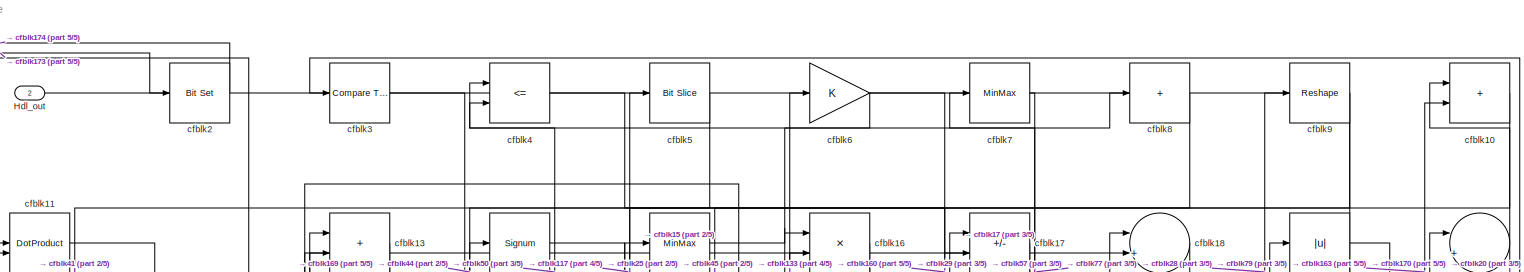
[diagram: root canvas - part 1/5, full width, top band]
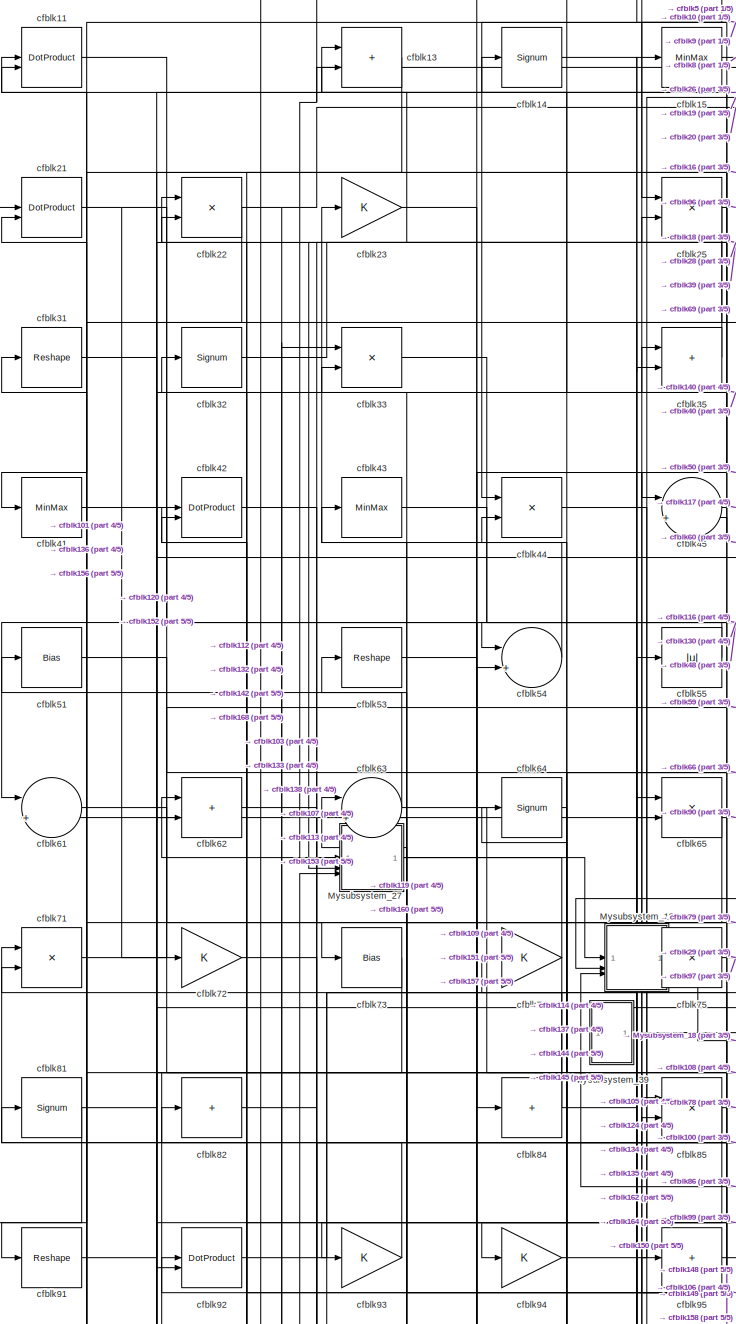
[diagram: root canvas - part 2/5, top left region]
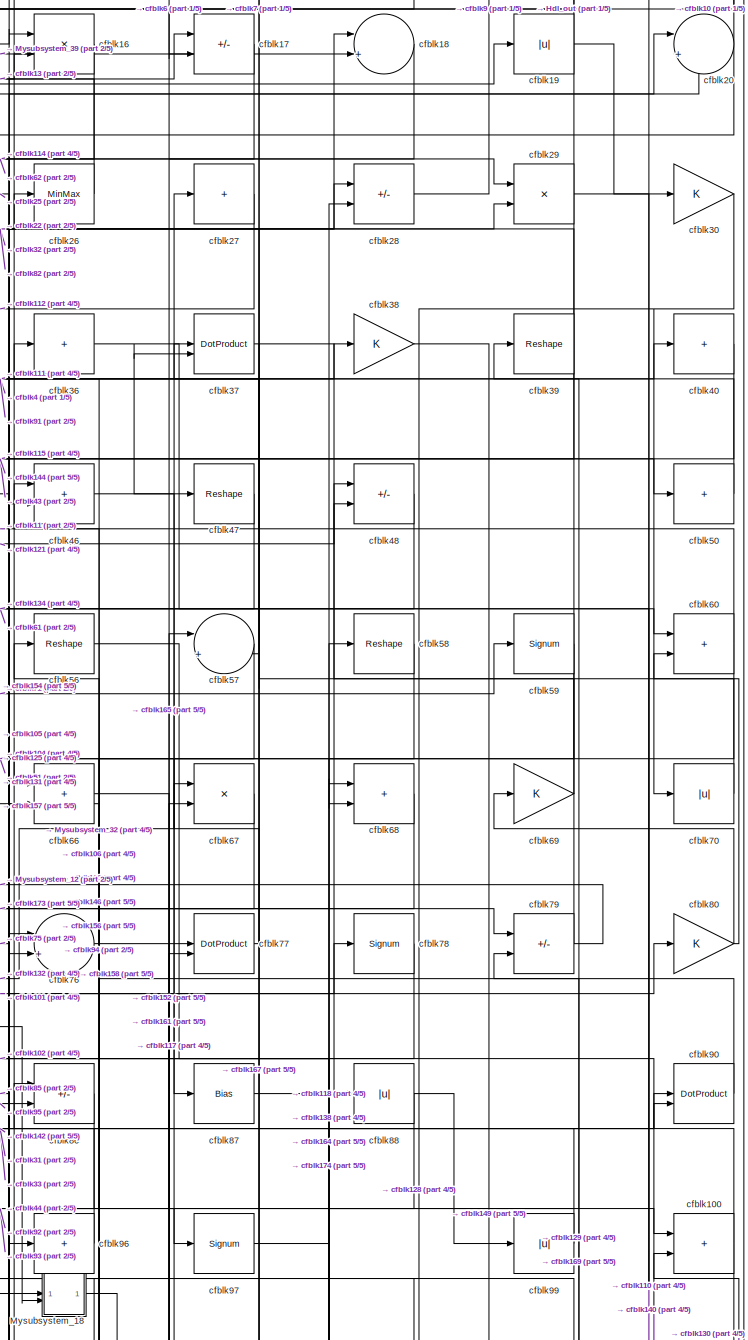
[diagram: root canvas - part 3/5, top right region]
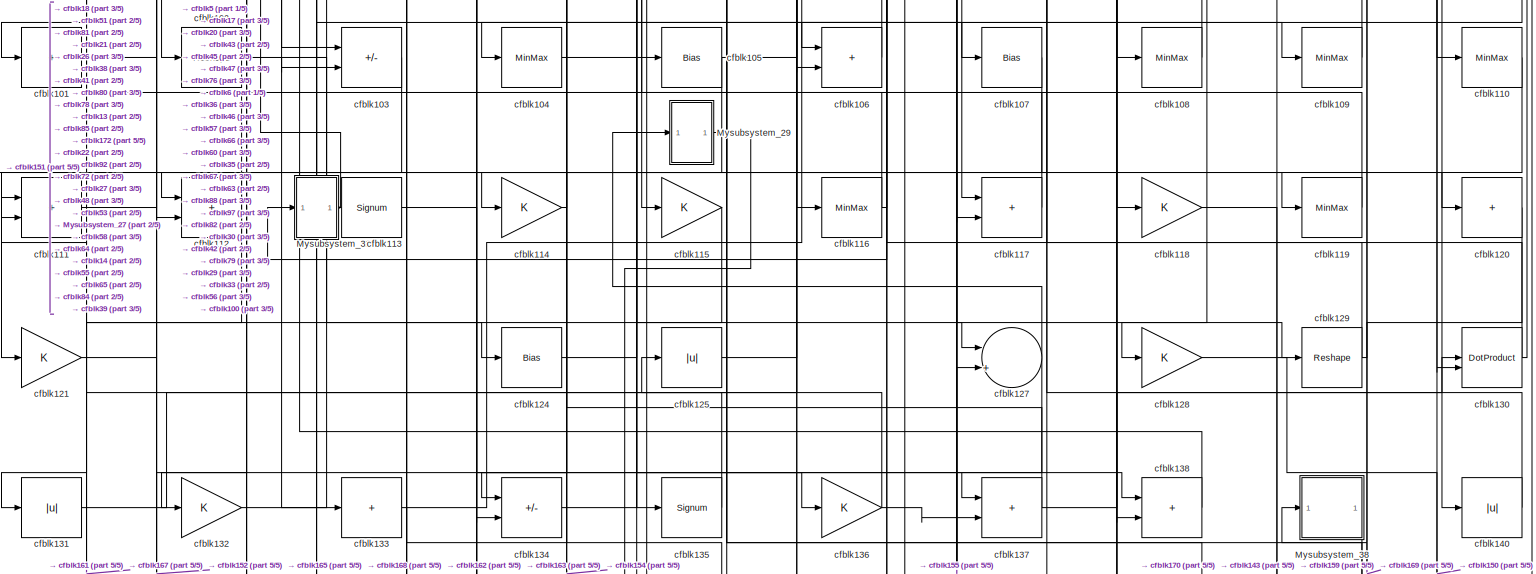
[diagram: root canvas - part 4/5, full width, bottom band]
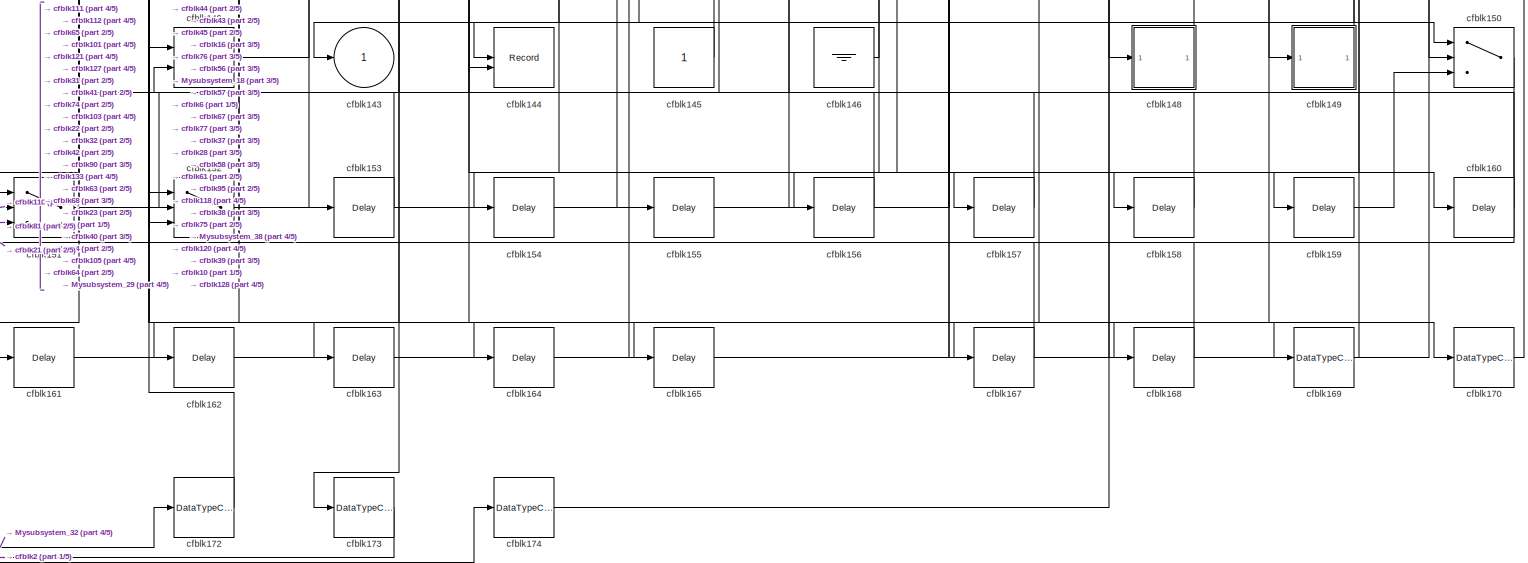
[diagram: root canvas - part 5/5, full width, bottom band]
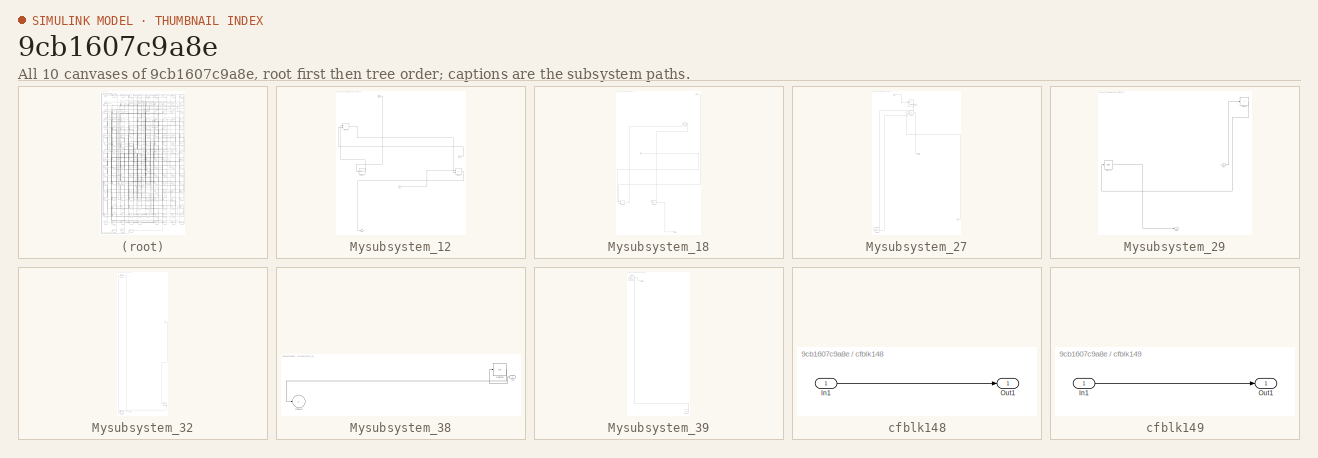
[diagram: thumbnail index - all 10 canvases of the model, root first then tree order]
MODEL slx_9cb1607c9a8e
KIND model
CONFIG AbsTol = auto
CONFIG EnableMultiTasking = off
CONFIG FixedStep = auto
CONFIG MaxStep = auto
CONFIG MinStep = auto
CONFIG RelTol = 1e-3
CONFIG SampleTimeConstraint = Unconstrained
CONFIG SolverName = VariableStepAuto
CONFIG StartTime = 0.0
CONFIG StopTime = 10.0
BLOCK [Outport] Hdl_out
  OutDataTypeStr = uint8
  Port = 2
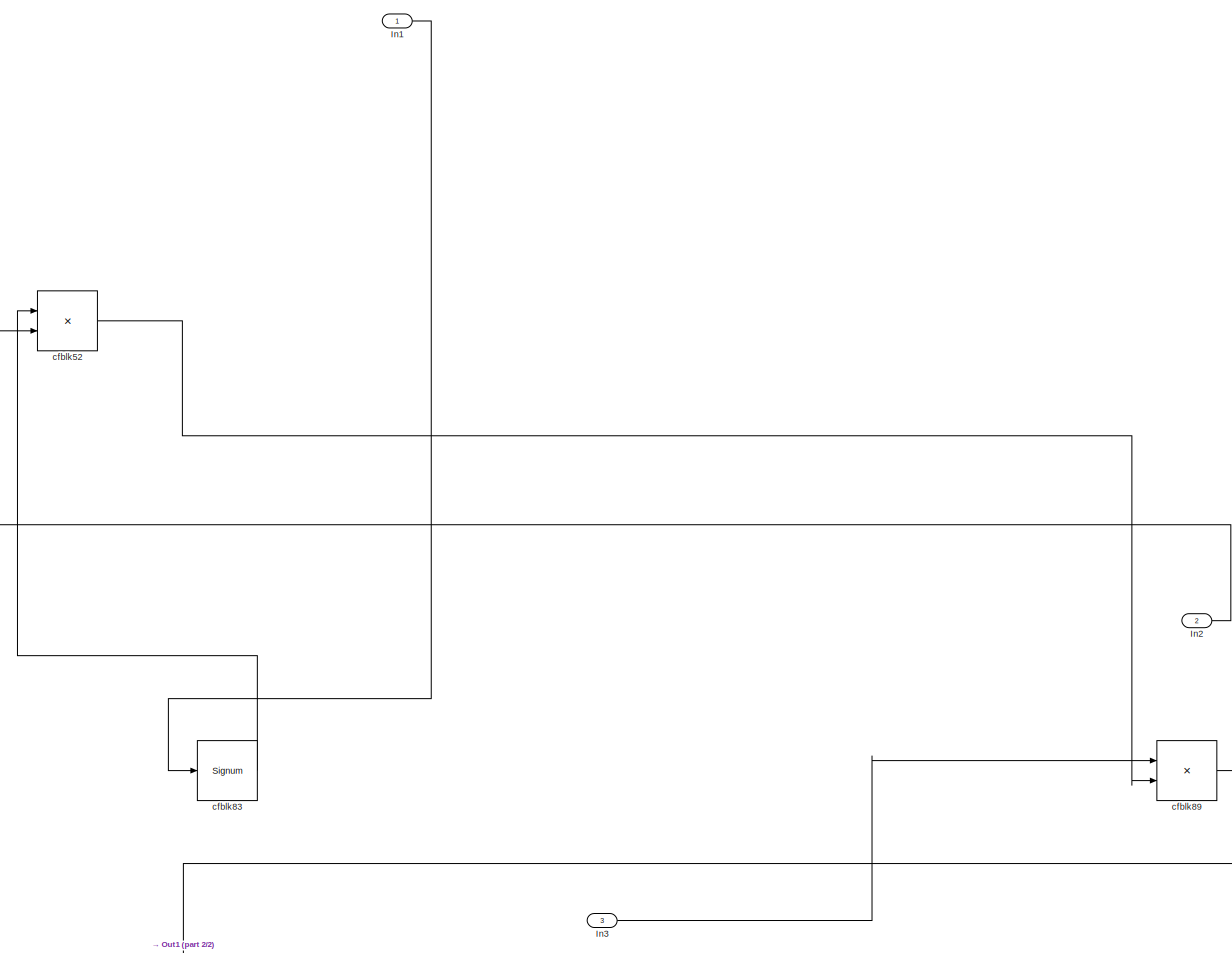
[diagram: Mysubsystem_12 - part 1/2, full width, middle band]
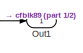
[diagram: Mysubsystem_12 - part 2/2, bottom left region]
BLOCK [SubSystem] Mysubsystem_12
  RTWFcnName = Mysubsystem_12
  RTWFcnNameOpts = User specified
  RTWFileNameOpts = Use function name
  RTWSystemCode = Reusable function
  TreatAsAtomicUnit = on
BLOCK [Inport] Mysubsystem_12/In1
BLOCK [Inport] Mysubsystem_12/In2
  Port = 2
BLOCK [Inport] Mysubsystem_12/In3
  Port = 3
BLOCK [Outport] Mysubsystem_12/Out1
BLOCK [Product] Mysubsystem_12/cfblk52
  Inputs = */
  RndMeth = Zero
  SaturateOnIntegerOverflow = on
BLOCK [Signum] Mysubsystem_12/cfblk83
BLOCK [Product] Mysubsystem_12/cfblk89
  Inputs = */
  RndMeth = Zero
  SaturateOnIntegerOverflow = on
BLOCK [SubSystem] Mysubsystem_18
  RTWFcnName = Mysubsystem_18
  RTWFcnNameOpts = User specified
  RTWFileNameOpts = Use function name
  RTWSystemCode = Reusable function
  TreatAsAtomicUnit = on
BLOCK [Inport] Mysubsystem_18/In1
BLOCK [Inport] Mysubsystem_18/In2
  Port = 2
BLOCK [Outport] Mysubsystem_18/Out1
BLOCK [Product] Mysubsystem_18/cfblk123
  Inputs = */
  RndMeth = Zero
  SaturateOnIntegerOverflow = on
BLOCK [Abs] Mysubsystem_18/cfblk126
  SaturateOnIntegerOverflow = off
BLOCK [Gain] Mysubsystem_18/cfblk49
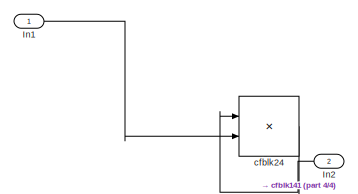
[diagram: Mysubsystem_27 - part 1/4, top center region]
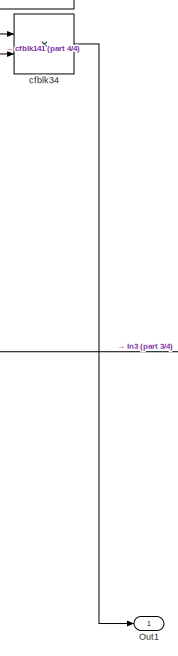
[diagram: Mysubsystem_27 - part 2/4, top center region]
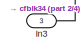
[diagram: Mysubsystem_27 - part 3/4, bottom right region]
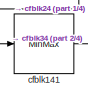
[diagram: Mysubsystem_27 - part 4/4, bottom left region]
BLOCK [SubSystem] Mysubsystem_27
  RTWFcnName = Mysubsystem_27
  RTWFcnNameOpts = User specified
  RTWFileNameOpts = Use function name
  RTWSystemCode = Reusable function
  TreatAsAtomicUnit = on
BLOCK [Inport] Mysubsystem_27/In1
BLOCK [Inport] Mysubsystem_27/In2
  Port = 2
BLOCK [Inport] Mysubsystem_27/In3
  Port = 3
BLOCK [Outport] Mysubsystem_27/Out1
BLOCK [MinMax] Mysubsystem_27/cfblk141
BLOCK [Product] Mysubsystem_27/cfblk24
  Inputs = */
  RndMeth = Zero
  SaturateOnIntegerOverflow = on
BLOCK [Product] Mysubsystem_27/cfblk34
  Inputs = */
  RndMeth = Zero
  SaturateOnIntegerOverflow = on
BLOCK [SubSystem] Mysubsystem_29
  RTWFcnName = Mysubsystem_29
  RTWFcnNameOpts = User specified
  RTWFileNameOpts = Use function name
  RTWSystemCode = Reusable function
  TreatAsAtomicUnit = on
BLOCK [Inport] Mysubsystem_29/In1
BLOCK [Outport] Mysubsystem_29/Out1
BLOCK [Bias] Mysubsystem_29/cfblk122
  Bias = 0.0
  SaturateOnIntegerOverflow = off
BLOCK [Sum] Mysubsystem_29/cfblk98
  IconShape = rectangular
  Inputs = +
BLOCK [SubSystem] Mysubsystem_32
  RTWFcnName = Mysubsystem_32
  RTWFcnNameOpts = User specified
  RTWFileNameOpts = Use function name
  RTWSystemCode = Reusable function
  TreatAsAtomicUnit = on
BLOCK [Inport] Mysubsystem_32/In1
BLOCK [Reference] Mysubsystem_32/cfblk1  REF=simulink/Logic and Bit
Operations/Bit Clear
  LibrarySourceBlock = hdlsllib/Logic and Bit\nOperations/Bit Clear
  SourceBlock = simulink/Logic and Bit\nOperations/Bit Clear
  SourceType = Bit Clear
BLOCK [Delay] Mysubsystem_32/cfblk166
  InputPortMap = u0
  SampleTime = 1
BLOCK [DataTypeConversion] Mysubsystem_32/cfblk171
  OutDataTypeStr = boolean
  RndMeth = Floor
  SaturateOnIntegerOverflow = off
BLOCK [Outport] Mysubsystem_32/y
BLOCK [SubSystem] Mysubsystem_38
  RTWFcnName = Mysubsystem_38
  RTWFcnNameOpts = User specified
  RTWFileNameOpts = Use function name
  RTWSystemCode = Reusable function
  TreatAsAtomicUnit = on
BLOCK [Inport] Mysubsystem_38/In1
BLOCK [Abs] Mysubsystem_38/cfblk139
  SaturateOnIntegerOverflow = off
BLOCK [Outport] Mysubsystem_38/cfblk143
  VectorParamsAs1DForOutWhenUnconnected = off
BLOCK [SubSystem] Mysubsystem_39
  RTWFcnName = Mysubsystem_39
  RTWFcnNameOpts = User specified
  RTWFileNameOpts = Use function name
  RTWSystemCode = Reusable function
  TreatAsAtomicUnit = on
BLOCK [Outport] Mysubsystem_39/Out1
BLOCK [Signum] Mysubsystem_39/cfblk12
BLOCK [Ground] Mysubsystem_39/cfblk147
BLOCK [Sum] cfblk10
  IconShape = rectangular
  OutDataTypeStr = uint8
BLOCK [Sum] cfblk100
  IconShape = rectangular
  OutDataTypeStr = uint8
BLOCK [Sum] cfblk101
  IconShape = rectangular
  Inputs = +
  OutDataTypeStr = uint8
BLOCK [Reshape] cfblk102
BLOCK [Sum] cfblk103
  IconShape = rectangular
  Inputs = +-
  OutDataTypeStr = uint8
BLOCK [MinMax] cfblk104
  OutDataTypeStr = uint8
BLOCK [Bias] cfblk105
  Bias = 0.0
  SaturateOnIntegerOverflow = off
BLOCK [Sum] cfblk106
  IconShape = rectangular
  OutDataTypeStr = uint8
BLOCK [Bias] cfblk107
  Bias = 0.0
  SaturateOnIntegerOverflow = off
BLOCK [MinMax] cfblk108
  OutDataTypeStr = uint8
BLOCK [MinMax] cfblk109
  OutDataTypeStr = uint8
BLOCK [DotProduct] cfblk11
  OutDataTypeStr = uint8
BLOCK [MinMax] cfblk110
  OutDataTypeStr = uint8
BLOCK [Sum] cfblk111
  IconShape = rectangular
  OutDataTypeStr = uint8
BLOCK [Sum] cfblk112
  IconShape = rectangular
  OutDataTypeStr = uint8
BLOCK [Signum] cfblk113
BLOCK [Gain] cfblk114
  OutDataTypeStr = uint8
BLOCK [Gain] cfblk115
  OutDataTypeStr = uint8
BLOCK [MinMax] cfblk116
  OutDataTypeStr = uint8
BLOCK [Sum] cfblk117
  IconShape = rectangular
  OutDataTypeStr = uint8
BLOCK [Gain] cfblk118
  OutDataTypeStr = uint8
BLOCK [MinMax] cfblk119
  OutDataTypeStr = uint8
BLOCK [Sum] cfblk120
  IconShape = rectangular
  Inputs = +
  OutDataTypeStr = uint8
BLOCK [Gain] cfblk121
  OutDataTypeStr = uint8
BLOCK [Bias] cfblk124
  Bias = 0.0
  SaturateOnIntegerOverflow = off
BLOCK [Abs] cfblk125
  OutDataTypeStr = uint8
  SaturateOnIntegerOverflow = off
BLOCK [Sum] cfblk127
  Inputs = |++
  OutDataTypeStr = uint8
BLOCK [Gain] cfblk128
  OutDataTypeStr = uint8
BLOCK [Reshape] cfblk129
BLOCK [Sum] cfblk13
  IconShape = rectangular
  OutDataTypeStr = uint8
BLOCK [DotProduct] cfblk130
  OutDataTypeStr = uint8
BLOCK [Abs] cfblk131
  OutDataTypeStr = uint8
  SaturateOnIntegerOverflow = off
BLOCK [Gain] cfblk132
  OutDataTypeStr = uint8
BLOCK [Sum] cfblk133
  IconShape = rectangular
  Inputs = +
  OutDataTypeStr = uint8
BLOCK [Sum] cfblk134
  IconShape = rectangular
  Inputs = +-
  OutDataTypeStr = uint8
BLOCK [Signum] cfblk135
BLOCK [Gain] cfblk136
  OutDataTypeStr = uint8
BLOCK [Sum] cfblk137
  IconShape = rectangular
  OutDataTypeStr = uint8
BLOCK [Sum] cfblk138
  IconShape = rectangular
  OutDataTypeStr = uint8
BLOCK [Signum] cfblk14
BLOCK [Abs] cfblk140
  OutDataTypeStr = uint8
  SaturateOnIntegerOverflow = off
BLOCK [Product] cfblk142
  Inputs = */
  OutDataTypeStr = uint8
  RndMeth = Zero
  SaturateOnIntegerOverflow = on
BLOCK [Outport] cfblk143
  OutDataTypeStr = uint8
  VectorParamsAs1DForOutWhenUnconnected = off
BLOCK [Record] cfblk144
  CompatibilityTag = XY
  FileSettingsInternal = {"entries":[{"content":{"excelSettings":{"content":{},"type":"Streamout.ExcelSettings"}},"type":"Streamout.FileSettingStorage","uuid":""}],"packageUris":["http:\/\/schema.mathworks.com\/mf0\/streamout_blocks\/R2020a"],"version":"1.0"}
  Layout = [1 1]
  SignalsInternal = {"entries":[{"content":{"signals":[{"content":{"blockPath":[],"dimensions":[1],"domain":"","lineColor":"#a2142f","plots":[1],"port":1,"signalID":30493,"signalName":"cfblk64"},"type":"RecordBlkView.Signal","uuid":""},{"content":{"blockPath":[],"dimensions":[1],"domain":"","lineColor":"#139fff","plots":[1],"port":2,"signalID":30496,"signalName":"cfblk40"},"type":"RecordBlkView.Signal","uuid":""}]},"...<+142ch>
  VisualizationBindings = {"xyplotplugin":{"info":[{"series":[{"bindingParametersList":[{"parameter":"X-Axis","signalID":30493,"signalName":"cfblk64"},{"parameter":"Y-Axis","signalID":30496,"signalName":"cfblk40"}],"seriesID":15237}],"subplotID":1}]}}
  st = -1
BLOCK [Constant] cfblk145
  OutDataTypeStr = uint8
  SampleTime = -1
BLOCK [Ground] cfblk146
BLOCK [SubSystem] cfblk148
  LibrarySourceBlock = hdlsllib/Ports &\nSubsystems/Subsystem
BLOCK [Inport] cfblk148/In1
BLOCK [Outport] cfblk148/Out1
BLOCK [SubSystem] cfblk149
  LibrarySourceBlock = hdlsllib/Ports &\nSubsystems/Subsystem
BLOCK [Inport] cfblk149/In1
BLOCK [Outport] cfblk149/Out1
BLOCK [MinMax] cfblk15
  OutDataTypeStr = uint8
BLOCK [Switch] cfblk150
  InputSameDT = off
  OutDataTypeStr = uint8
  SaturateOnIntegerOverflow = off
BLOCK [Switch] cfblk151
  InputSameDT = off
  OutDataTypeStr = uint8
  SaturateOnIntegerOverflow = off
BLOCK [Switch] cfblk152
  InputSameDT = off
  OutDataTypeStr = uint8
  SaturateOnIntegerOverflow = off
BLOCK [Delay] cfblk153
  InputPortMap = u0
  SampleTime = 1
BLOCK [Delay] cfblk154
  InputPortMap = u0
  SampleTime = 1
BLOCK [Delay] cfblk155
  InputPortMap = u0
  SampleTime = 1
BLOCK [Delay] cfblk156
  InputPortMap = u0
  SampleTime = 1
BLOCK [Delay] cfblk157
  InputPortMap = u0
  SampleTime = 1
BLOCK [Delay] cfblk158
  InputPortMap = u0
  SampleTime = 1
BLOCK [Delay] cfblk159
  InputPortMap = u0
  SampleTime = 1
BLOCK [Product] cfblk16
  Inputs = */
  OutDataTypeStr = uint8
  RndMeth = Zero
  SaturateOnIntegerOverflow = on
BLOCK [Delay] cfblk160
  InputPortMap = u0
  SampleTime = 1
BLOCK [Delay] cfblk161
  InputPortMap = u0
  SampleTime = 1
BLOCK [Delay] cfblk162
  InputPortMap = u0
  SampleTime = 1
BLOCK [Delay] cfblk163
  InputPortMap = u0
  SampleTime = 1
BLOCK [Delay] cfblk164
  InputPortMap = u0
  SampleTime = 1
BLOCK [Delay] cfblk165
  InputPortMap = u0
  SampleTime = 1
BLOCK [Delay] cfblk167
  InputPortMap = u0
  SampleTime = 1
BLOCK [Delay] cfblk168
  InputPortMap = u0
  SampleTime = 1
BLOCK [DataTypeConversion] cfblk169
  OutDataTypeStr = uint8
  RndMeth = Floor
  SaturateOnIntegerOverflow = off
BLOCK [Sum] cfblk17
  IconShape = rectangular
  Inputs = +-
  OutDataTypeStr = uint8
BLOCK [DataTypeConversion] cfblk170
  OutDataTypeStr = uint8
  RndMeth = Floor
  SaturateOnIntegerOverflow = off
BLOCK [DataTypeConversion] cfblk172
  OutDataTypeStr = uint8
  RndMeth = Floor
  SaturateOnIntegerOverflow = off
BLOCK [DataTypeConversion] cfblk173
  OutDataTypeStr = uint8
  RndMeth = Floor
  SaturateOnIntegerOverflow = off
BLOCK [DataTypeConversion] cfblk174
  OutDataTypeStr = uint8
  RndMeth = Floor
  SaturateOnIntegerOverflow = off
BLOCK [Sum] cfblk18
  Inputs = |++
  OutDataTypeStr = uint8
BLOCK [Abs] cfblk19
  OutDataTypeStr = uint8
  SaturateOnIntegerOverflow = off
BLOCK [Reference] cfblk2  REF=simulink/Logic and Bit
Operations/Bit Set
  LibrarySourceBlock = hdlsllib/Logic and Bit\nOperations/Bit Set
  SourceBlock = simulink/Logic and Bit\nOperations/Bit Set
  SourceType = Bit Set
BLOCK [Sum] cfblk20
  Inputs = |++
  OutDataTypeStr = uint8
BLOCK [DotProduct] cfblk21
  OutDataTypeStr = uint8
BLOCK [Product] cfblk22
  Inputs = */
  OutDataTypeStr = uint8
  RndMeth = Zero
  SaturateOnIntegerOverflow = on
BLOCK [Gain] cfblk23
  OutDataTypeStr = uint8
BLOCK [Product] cfblk25
  Inputs = */
  OutDataTypeStr = uint8
  RndMeth = Zero
  SaturateOnIntegerOverflow = on
BLOCK [MinMax] cfblk26
  OutDataTypeStr = uint8
BLOCK [Sum] cfblk27
  IconShape = rectangular
  Inputs = +
  OutDataTypeStr = uint8
BLOCK [Sum] cfblk28
  IconShape = rectangular
  Inputs = +-
  OutDataTypeStr = uint8
BLOCK [Product] cfblk29
  Inputs = */
  OutDataTypeStr = uint8
  RndMeth = Zero
  SaturateOnIntegerOverflow = on
BLOCK [Reference] cfblk3  REF=hdlsllib/Logic and Bit
Operations/Compare
To Zero
  SourceBlock = hdlsllib/Logic and Bit\nOperations/Compare\nTo Zero
  SourceType = Compare To Zero
BLOCK [Gain] cfblk30
  OutDataTypeStr = uint8
BLOCK [Reshape] cfblk31
BLOCK [Signum] cfblk32
BLOCK [Product] cfblk33
  Inputs = */
  OutDataTypeStr = uint8
  RndMeth = Zero
  SaturateOnIntegerOverflow = on
BLOCK [Sum] cfblk35
  IconShape = rectangular
  OutDataTypeStr = uint8
BLOCK [Sum] cfblk36
  IconShape = rectangular
  Inputs = +
  OutDataTypeStr = uint8
BLOCK [DotProduct] cfblk37
  OutDataTypeStr = uint8
BLOCK [Gain] cfblk38
  OutDataTypeStr = uint8
BLOCK [Reshape] cfblk39
BLOCK [RelationalOperator] cfblk4
  InputSameDT = off
  Operator = <=
  OutDataTypeStr = boolean
BLOCK [Sum] cfblk40
  IconShape = rectangular
  Inputs = +
  OutDataTypeStr = uint8
BLOCK [MinMax] cfblk41
  OutDataTypeStr = uint8
BLOCK [DotProduct] cfblk42
  OutDataTypeStr = uint8
BLOCK [MinMax] cfblk43
  OutDataTypeStr = uint8
BLOCK [Product] cfblk44
  Inputs = */
  OutDataTypeStr = uint8
  RndMeth = Zero
  SaturateOnIntegerOverflow = on
BLOCK [Sum] cfblk45
  Inputs = |++
  OutDataTypeStr = uint8
BLOCK [Sum] cfblk46
  IconShape = rectangular
  OutDataTypeStr = uint8
BLOCK [Reshape] cfblk47
BLOCK [Sum] cfblk48
  IconShape = rectangular
  Inputs = +-
  OutDataTypeStr = uint8
BLOCK [Reference] cfblk5  REF=hdlsllib/Logic and Bit
Operations/Bit Slice
  SourceBlock = hdlsllib/Logic and Bit\nOperations/Bit Slice
  SourceType = Bit Slice
BLOCK [Sum] cfblk50
  IconShape = rectangular
  Inputs = +
  OutDataTypeStr = uint8
BLOCK [Bias] cfblk51
  Bias = 0.0
  SaturateOnIntegerOverflow = off
BLOCK [Reshape] cfblk53
BLOCK [Sum] cfblk54
  Inputs = |++
  OutDataTypeStr = uint8
BLOCK [Abs] cfblk55
  OutDataTypeStr = uint8
  SaturateOnIntegerOverflow = off
BLOCK [Reshape] cfblk56
BLOCK [Sum] cfblk57
  Inputs = |++
  OutDataTypeStr = uint8
BLOCK [Reshape] cfblk58
BLOCK [Signum] cfblk59
BLOCK [Gain] cfblk6
  OutDataTypeStr = uint8
BLOCK [Sum] cfblk60
  IconShape = rectangular
  OutDataTypeStr = uint8
BLOCK [Sum] cfblk61
  Inputs = |++
  OutDataTypeStr = uint8
BLOCK [Sum] cfblk62
  IconShape = rectangular
  OutDataTypeStr = uint8
BLOCK [Sum] cfblk63
  Inputs = |++
  OutDataTypeStr = uint8
BLOCK [Signum] cfblk64
BLOCK [Product] cfblk65
  Inputs = */
  OutDataTypeStr = uint8
  RndMeth = Zero
  SaturateOnIntegerOverflow = on
BLOCK [Sum] cfblk66
  IconShape = rectangular
  OutDataTypeStr = uint8
BLOCK [Product] cfblk67
  Inputs = */
  OutDataTypeStr = uint8
  RndMeth = Zero
  SaturateOnIntegerOverflow = on
BLOCK [Sum] cfblk68
  IconShape = rectangular
  OutDataTypeStr = uint8
BLOCK [Gain] cfblk69
  OutDataTypeStr = uint8
BLOCK [MinMax] cfblk7
  OutDataTypeStr = uint8
BLOCK [Abs] cfblk70
  OutDataTypeStr = uint8
  SaturateOnIntegerOverflow = off
BLOCK [Product] cfblk71
  Inputs = */
  OutDataTypeStr = uint8
  RndMeth = Zero
  SaturateOnIntegerOverflow = on
BLOCK [Gain] cfblk72
  OutDataTypeStr = uint8
BLOCK [Bias] cfblk73
  Bias = 0.0
  SaturateOnIntegerOverflow = off
BLOCK [Gain] cfblk74
  OutDataTypeStr = uint8
BLOCK [Product] cfblk75
  Inputs = */
  OutDataTypeStr = uint8
  RndMeth = Zero
  SaturateOnIntegerOverflow = on
BLOCK [Sum] cfblk76
  Inputs = |++
  OutDataTypeStr = uint8
BLOCK [DotProduct] cfblk77
  OutDataTypeStr = uint8
BLOCK [Signum] cfblk78
BLOCK [Sum] cfblk79
  IconShape = rectangular
  Inputs = +-
  OutDataTypeStr = uint8
BLOCK [Sum] cfblk8
  IconShape = rectangular
  Inputs = +
  OutDataTypeStr = uint8
BLOCK [Gain] cfblk80
  OutDataTypeStr = uint8
BLOCK [Signum] cfblk81
BLOCK [Sum] cfblk82
  IconShape = rectangular
  Inputs = +
  OutDataTypeStr = uint8
BLOCK [Sum] cfblk84
  IconShape = rectangular
  Inputs = +
  OutDataTypeStr = uint8
BLOCK [Product] cfblk85
  Inputs = */
  OutDataTypeStr = uint8
  RndMeth = Zero
  SaturateOnIntegerOverflow = on
BLOCK [Sum] cfblk86
  IconShape = rectangular
  Inputs = +-
  OutDataTypeStr = uint8
BLOCK [Bias] cfblk87
  Bias = 0.0
  SaturateOnIntegerOverflow = off
BLOCK [Abs] cfblk88
  OutDataTypeStr = uint8
  SaturateOnIntegerOverflow = off
BLOCK [Reshape] cfblk9
BLOCK [DotProduct] cfblk90
  OutDataTypeStr = uint8
BLOCK [Reshape] cfblk91
BLOCK [DotProduct] cfblk92
  OutDataTypeStr = uint8
BLOCK [Gain] cfblk93
  OutDataTypeStr = uint8
BLOCK [Gain] cfblk94
  OutDataTypeStr = uint8
BLOCK [Sum] cfblk95
  IconShape = rectangular
  Inputs = +
  OutDataTypeStr = uint8
BLOCK [Sum] cfblk96
  IconShape = rectangular
  Inputs = +
  OutDataTypeStr = uint8
BLOCK [Signum] cfblk97
BLOCK [Abs] cfblk99
  OutDataTypeStr = uint8
  SaturateOnIntegerOverflow = off
LINE Mysubsystem_12/In1:1 -> Mysubsystem_12/cfblk83:1
LINE Mysubsystem_12/In2:1 -> Mysubsystem_12/cfblk52:2
LINE Mysubsystem_12/In3:1 -> Mysubsystem_12/cfblk89:1
LINE Mysubsystem_12/cfblk52:1 -> Mysubsystem_12/cfblk89:2
LINE Mysubsystem_12/cfblk83:1 -> Mysubsystem_12/cfblk52:1
LINE Mysubsystem_12/cfblk89:1 -> Mysubsystem_12/Out1:1
LINE Mysubsystem_12:1 -> Mysubsystem_18:2
LINE Mysubsystem_18/In1:1 -> Mysubsystem_18/cfblk123:2
LINE Mysubsystem_18/In2:1 -> Mysubsystem_18/cfblk123:1
LINE Mysubsystem_18/cfblk123:1 -> Mysubsystem_18/cfblk49:1
LINE Mysubsystem_18/cfblk126:1 -> Mysubsystem_18/Out1:1
LINE Mysubsystem_18/cfblk49:1 -> Mysubsystem_18/cfblk126:1
LINE Mysubsystem_18:1 -> cfblk158:1
LINE Mysubsystem_27/In1:1 -> Mysubsystem_27/cfblk24:2
LINE Mysubsystem_27/In2:1 -> Mysubsystem_27/cfblk24:1
LINE Mysubsystem_27/In3:1 -> Mysubsystem_27/cfblk34:1
LINE Mysubsystem_27/cfblk141:1 -> Mysubsystem_27/cfblk34:2
LINE Mysubsystem_27/cfblk24:1 -> Mysubsystem_27/cfblk141:1
LINE Mysubsystem_27/cfblk34:1 -> Mysubsystem_27/Out1:1
LINE Mysubsystem_27:1 -> Mysubsystem_12:1
LINE Mysubsystem_29/In1:1 -> Mysubsystem_29/cfblk98:1
LINE Mysubsystem_29/cfblk122:1 -> Mysubsystem_29/Out1:1
LINE Mysubsystem_29/cfblk98:1 -> Mysubsystem_29/cfblk122:1
LINE Mysubsystem_29:1 -> cfblk155:1
LINE Mysubsystem_32/In1:1 -> Mysubsystem_32/cfblk166:1
LINE Mysubsystem_32/cfblk166:1 -> Mysubsystem_32/cfblk171:1
LINE Mysubsystem_32/cfblk171:1 -> Mysubsystem_32/cfblk1:1
LINE Mysubsystem_32/cfblk1:1 -> Mysubsystem_32/y:1
LINE Mysubsystem_32:1 -> cfblk172:1
LINE Mysubsystem_38/In1:1 -> Mysubsystem_38/cfblk139:1
LINE Mysubsystem_38/cfblk139:1 -> Mysubsystem_38/cfblk143:1
LINE Mysubsystem_38:1 -> cfblk143:1
LINE Mysubsystem_39/cfblk12:1 -> Mysubsystem_39/Out1:1
LINE Mysubsystem_39/cfblk147:1 -> Mysubsystem_39/cfblk12:1
NET Mysubsystem_39:1 -> Mysubsystem_27:1, cfblk18:2
NET cfblk100:1 -> cfblk134:1, cfblk31:1
NET cfblk101:1 -> cfblk168:1, cfblk80:1
NET cfblk102:1 -> cfblk103:2, cfblk124:1
LINE cfblk103:1 -> cfblk162:1
LINE cfblk104:1 -> cfblk127:1
NET cfblk105:1 -> cfblk154:1, cfblk20:2
LINE cfblk106:1 -> cfblk63:1
LINE cfblk107:1 -> cfblk121:1
LINE cfblk108:1 -> cfblk82:1
LINE cfblk109:1 -> cfblk42:1
LINE cfblk10:1 -> cfblk25:1
LINE cfblk110:1 -> cfblk151:2
LINE cfblk111:1 -> cfblk38:1
NET cfblk112:1 -> cfblk161:1, cfblk51:1
LINE cfblk113:1 -> cfblk138:1
NET cfblk114:1 -> Mysubsystem_27:2, cfblk14:1
LINE cfblk115:1 -> cfblk131:1
NET cfblk116:1 -> cfblk36:1, cfblk92:1
LINE cfblk117:1 -> cfblk5:1
LINE cfblk118:1 -> cfblk170:1
LINE cfblk119:1 -> cfblk53:1
LINE cfblk11:1 -> cfblk84:1
LINE cfblk120:1 -> cfblk159:1
NET cfblk121:1 -> cfblk165:1, cfblk26:1, cfblk48:2
LINE cfblk124:1 -> cfblk65:1
LINE cfblk125:1 -> cfblk17:1
NET cfblk127:1 -> Mysubsystem_29:1, cfblk137:1, cfblk152:3
LINE cfblk128:1 -> cfblk150:2
NET cfblk129:1 -> cfblk46:1, cfblk79:2
NET cfblk130:1 -> cfblk100:2, cfblk67:1
LINE cfblk131:1 -> cfblk76:1
LINE cfblk132:1 -> cfblk27:1
NET cfblk133:1 -> cfblk163:1, cfblk6:1
LINE cfblk134:1 -> cfblk55:1
LINE cfblk135:1 -> cfblk125:1
NET cfblk136:1 -> cfblk137:2, cfblk81:1
NET cfblk137:1 -> cfblk130:1, cfblk64:1
LINE cfblk138:1 -> Mysubsystem_27:3
LINE cfblk13:1 -> cfblk112:1
LINE cfblk140:1 -> cfblk35:1
NET cfblk142:1 -> cfblk32:1, cfblk90:1
NET cfblk145:1 -> cfblk43:1, cfblk74:1
LINE cfblk146:1 -> cfblk56:1
LINE cfblk148/In1:1 -> cfblk148/Out1:1
LINE cfblk148:1 -> cfblk95:1
LINE cfblk149/In1:1 -> cfblk149/Out1:1
LINE cfblk149:1 -> cfblk75:2
NET cfblk14:1 -> cfblk136:1, cfblk35:2
LINE cfblk150:1 -> cfblk21:1
LINE cfblk151:1 -> cfblk54:2
LINE cfblk152:1 -> cfblk67:2
LINE cfblk153:1 -> cfblk142:2
LINE cfblk154:1 -> cfblk76:2
LINE cfblk155:1 -> cfblk127:2
LINE cfblk156:1 -> cfblk21:2
LINE cfblk157:1 -> cfblk16:1
LINE cfblk158:1 -> cfblk45:2
LINE cfblk159:1 -> cfblk150:3
LINE cfblk15:1 -> cfblk8:1
LINE cfblk160:1 -> cfblk63:2
LINE cfblk161:1 -> cfblk77:2
LINE cfblk162:1 -> cfblk75:1
LINE cfblk163:1 -> cfblk10:2
LINE cfblk164:1 -> cfblk28:2
LINE cfblk165:1 -> cfblk57:1
LINE cfblk167:1 -> cfblk111:2
LINE cfblk168:1 -> cfblk22:2
NET cfblk169:1 -> Mysubsystem_38:1, cfblk39:1
NET cfblk16:1 -> cfblk46:2, cfblk62:2
LINE cfblk170:1 -> cfblk3:1
LINE cfblk172:1 -> cfblk142:1
LINE cfblk173:1 -> cfblk2:1
LINE cfblk174:1 -> cfblk58:1
LINE cfblk17:1 -> cfblk114:1
LINE cfblk18:1 -> cfblk111:1
LINE cfblk19:1 -> cfblk30:1
NET cfblk20:1 -> Mysubsystem_18:1, cfblk10:1
NET cfblk21:1 -> cfblk120:1, cfblk72:1, cfblk73:1
NET cfblk22:1 -> cfblk101:1, cfblk103:1, cfblk20:1
LINE cfblk23:1 -> cfblk157:1
NET cfblk25:1 -> cfblk65:2, cfblk96:1
LINE cfblk26:1 -> cfblk13:2
NET cfblk27:1 -> cfblk112:2, cfblk66:2
LINE cfblk28:1 -> cfblk9:1
LINE cfblk29:1 -> cfblk110:1
LINE cfblk2:1 -> cfblk174:1
NET cfblk30:1 -> cfblk128:1, cfblk70:1
LINE cfblk31:1 -> cfblk152:1
LINE cfblk32:1 -> cfblk18:1
LINE cfblk33:1 -> cfblk130:2
LINE cfblk35:1 -> cfblk13:1
NET cfblk36:1 -> cfblk37:2, cfblk47:1, cfblk60:1
NET cfblk37:1 -> cfblk167:1, cfblk88:1
LINE cfblk38:1 -> cfblk149:1
NET cfblk39:1 -> cfblk115:1, cfblk22:1
LINE cfblk3:1 -> cfblk169:1
LINE cfblk40:1 -> cfblk144:2
NET cfblk41:1 -> cfblk105:1, cfblk164:1
LINE cfblk42:1 -> cfblk153:1
NET cfblk43:1 -> cfblk116:1, cfblk50:1
LINE cfblk44:1 -> cfblk150:1
LINE cfblk45:1 -> cfblk117:2
LINE cfblk46:1 -> cfblk87:1
LINE cfblk47:1 -> cfblk106:2
NET cfblk48:1 -> cfblk134:2, cfblk61:1
LINE cfblk4:1 -> cfblk17:2
LINE cfblk50:1 -> cfblk4:1
LINE cfblk51:1 -> cfblk66:1
LINE cfblk53:1 -> cfblk109:1
LINE cfblk54:1 -> cfblk23:1
LINE cfblk55:1 -> cfblk54:1
LINE cfblk56:1 -> cfblk140:1
LINE cfblk57:1 -> cfblk106:1
LINE cfblk58:1 -> cfblk104:1
LINE cfblk59:1 -> cfblk68:2
LINE cfblk5:1 -> cfblk41:1
NET cfblk60:1 -> Mysubsystem_32:1, cfblk117:1, cfblk11:1, cfblk37:1, cfblk94:1
LINE cfblk61:1 -> cfblk148:1
NET cfblk62:1 -> cfblk42:2, cfblk79:1
NET cfblk63:1 -> cfblk108:1, cfblk11:2
LINE cfblk64:1 -> cfblk144:1
LINE cfblk65:1 -> cfblk151:1
LINE cfblk66:1 -> cfblk129:1
LINE cfblk67:1 -> cfblk156:1
LINE cfblk68:1 -> cfblk173:1
LINE cfblk69:1 -> cfblk25:2
NET cfblk6:1 -> cfblk160:1, cfblk29:1, cfblk4:2
LINE cfblk70:1 -> cfblk48:1
LINE cfblk71:1 -> cfblk59:1
LINE cfblk72:1 -> cfblk113:1
LINE cfblk73:1 -> cfblk91:1
NET cfblk74:1 -> cfblk152:2, cfblk62:1
NET cfblk75:1 -> cfblk29:2, cfblk97:1
NET cfblk76:1 -> cfblk100:1, cfblk77:1
LINE cfblk77:1 -> cfblk7:1
LINE cfblk78:1 -> cfblk102:1
NET cfblk79:1 -> Hdl_out:1, Mysubsystem_12:2
LINE cfblk7:1 -> cfblk57:2
NET cfblk80:1 -> cfblk60:2, cfblk69:1
NET cfblk81:1 -> cfblk151:3, cfblk85:1
NET cfblk82:1 -> cfblk107:1, cfblk119:1, cfblk28:1
NET cfblk84:1 -> cfblk135:1, cfblk71:2
NET cfblk85:1 -> cfblk132:1, cfblk78:1
LINE cfblk86:1 -> cfblk92:2
LINE cfblk87:1 -> cfblk68:1
NET cfblk88:1 -> cfblk138:2, cfblk99:1
LINE cfblk8:1 -> cfblk44:1
LINE cfblk90:1 -> cfblk61:2
NET cfblk91:1 -> cfblk16:2, cfblk40:1
NET cfblk92:1 -> cfblk133:1, cfblk15:1, cfblk33:1, cfblk85:2
LINE cfblk93:1 -> cfblk71:1
LINE cfblk94:1 -> cfblk19:1
NET cfblk95:1 -> Mysubsystem_12:3, cfblk86:2
NET cfblk96:1 -> cfblk44:2, cfblk86:1
NET cfblk97:1 -> cfblk118:1, cfblk90:2
NET cfblk99:1 -> cfblk33:2, cfblk93:1
LINE cfblk9:1 -> cfblk45:1
note: NET lines group one-source signal fan-out (src -> all destinations, sorted); 1:1 wires keep LINE
